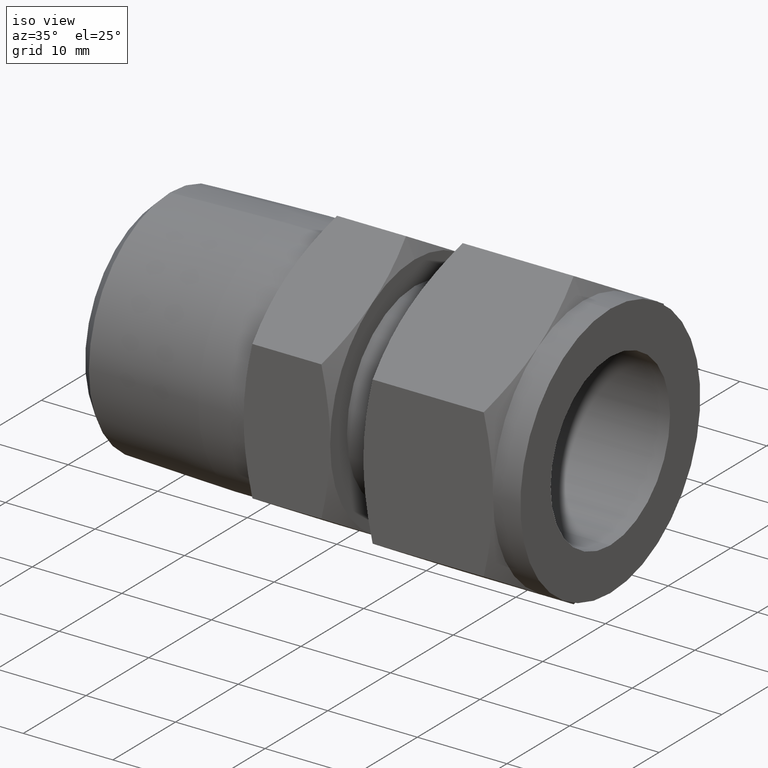
[diagram: clean part render]
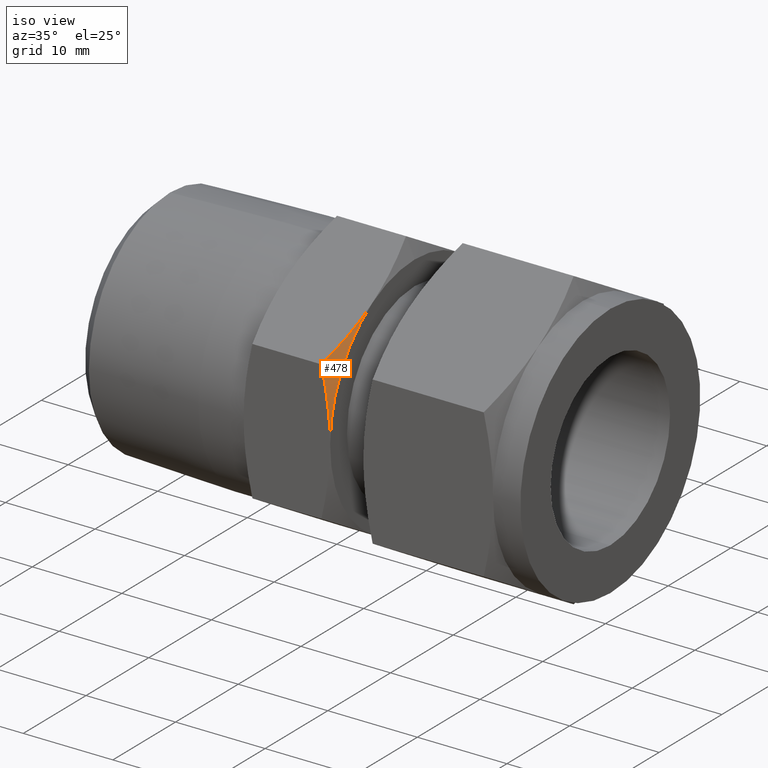
[diagram: same view with one face highlighted and labeled with its STEP entity id]
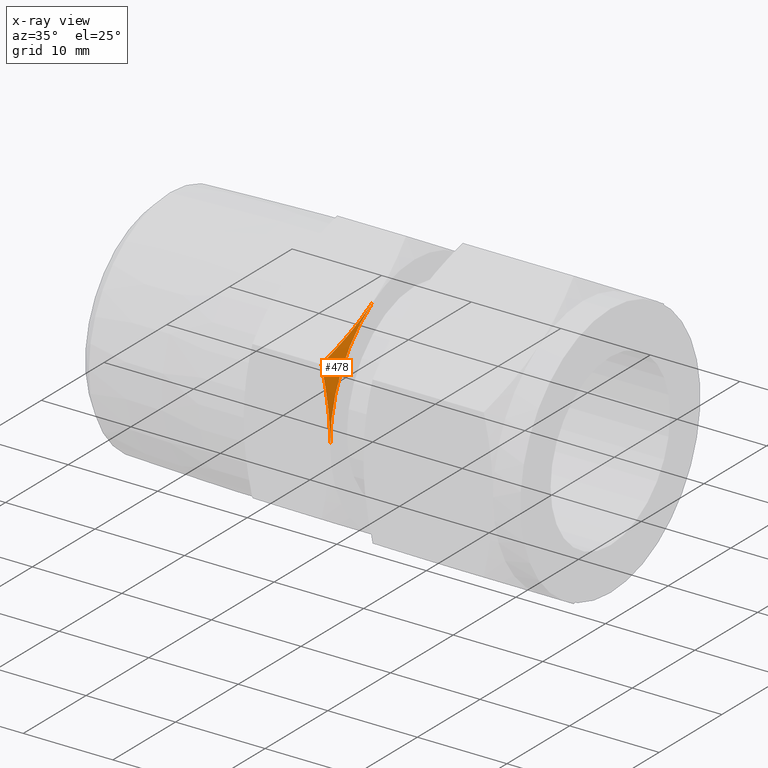
[diagram: x-ray of the same camera — body ghosted, the highlighted face saturated]
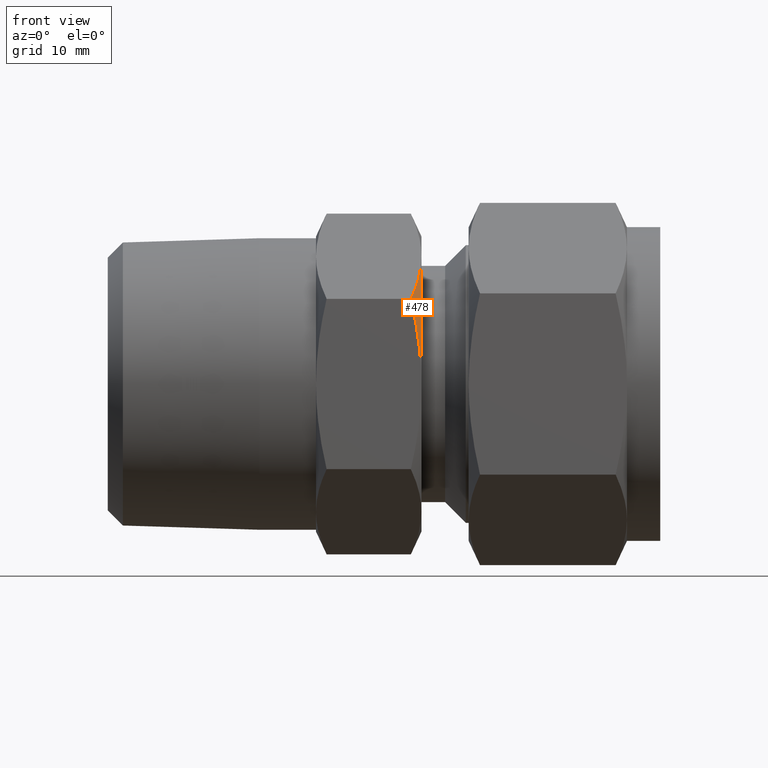
[diagram: same view with one face highlighted and labeled with its STEP entity id]
A machine part, iso view. The second image highlights one B-rep face of the part: STEP entity #478.
The next image is the same camera in x-ray: the body ghosted, the highlighted face saturated — about 0% of this face is hidden behind the body in this view.
A second angle (front view) of the same face is appended — the face is thin or edge-on in the first view.
In plain terms, the highlighted conical surface has half-angle 65 deg.
Its self-contained STEP definition (entity closure, byte-faithful):
#9 = DIRECTION ( 'NONE',  ( -1.000000000000000000, -2.220446049250309876E-16, 0.000000000000000000 ) ) ;
#65 = CARTESIAN_POINT ( 'NONE',  ( 28.70200000000000173, -13.49374999999999680, 3.615639415367511322 ) ) ;
#106 = EDGE_CURVE ( 'NONE', #1724, #1215, #839, .T. ) ;
#115 = CARTESIAN_POINT ( 'NONE',  ( 28.70200000000001594, -9.878110584632574742, 9.878110584632514346 ) ) ;
#130 = CARTESIAN_POINT ( 'NONE',  ( 28.70199999999999818, -6.746875000000000178, 11.68593029231629998 ) ) ;
#158 = CARTESIAN_POINT ( 'NONE',  ( 28.21529362246609907, -1.080705253139999973E-16, 5.909950263546789303E-16 ) ) ;
#237 = EDGE_CURVE ( 'NONE', #691, #1724, #1119, .T. ) ;
#260 = CARTESIAN_POINT ( 'NONE',  ( 28.70199999999999818, -6.746875000000000178, 11.68593029231629998 ) ) ;
#478 = ADVANCED_FACE ( 'NONE', ( #1031 ), #1699, .T. ) ;
#537 = ORIENTED_EDGE ( 'NONE', *, *, #237, .F. ) ;
#561 = EDGE_CURVE ( 'NONE', #1215, #691, #1562, .T. ) ;
#691 = VERTEX_POINT ( 'NONE', #968 ) ;
#749 = AXIS2_PLACEMENT_3D ( 'NONE', #930, #1626, #1805 ) ;
#839 = CIRCLE ( 'NONE', #749, 13.49375000000000036 ) ;
#890 = AXIS2_PLACEMENT_3D ( 'NONE', #158, #9, #1597 ) ;
#930 = CARTESIAN_POINT ( 'NONE',  ( 28.70199999999999818, -6.065908952842039619E-31, 5.909950263546789303E-16 ) ) ;
#936 = CARTESIAN_POINT ( 'NONE',  ( 27.72858724493230298, -13.49375000000000036, 7.790620194877519999 ) ) ;
#943 = ORIENTED_EDGE ( 'NONE', *, *, #106, .F. ) ;
#968 = CARTESIAN_POINT ( 'NONE',  ( 27.72858724493230298, -13.49375000000000036, 7.790620194877519999 ) ) ;
#1031 = FACE_OUTER_BOUND ( 'NONE', #1810, .T. ) ;
#1070 = CARTESIAN_POINT ( 'NONE',  ( 28.70199999999999818, -13.49375000000000036, 4.115953129539549368E-15 ) ) ;
#1119 =( BOUNDED_CURVE ( )  B_SPLINE_CURVE ( 2, ( #1424, #115, #260 ),
 .UNSPECIFIED., .F., .T. ) 
 B_SPLINE_CURVE_WITH_KNOTS ( ( 3, 3 ),
 ( 0.000000000000000000, 0.3096255889101819925 ),
 .UNSPECIFIED. ) 
 CURVE ( )  GEOMETRIC_REPRESENTATION_ITEM ( )  RATIONAL_B_SPLINE_CURVE ( ( 1.000000000000000000, 1.037954849302089810, 1.000000000000000000 ) ) 
 REPRESENTATION_ITEM ( '' )  );
#1215 = VERTEX_POINT ( 'NONE', #1489 ) ;
#1345 = ORIENTED_EDGE ( 'NONE', *, *, #561, .F. ) ;
#1424 = CARTESIAN_POINT ( 'NONE',  ( 27.72858724493230298, -13.49375000000000036, 7.790620194877519999 ) ) ;
#1489 = CARTESIAN_POINT ( 'NONE',  ( 28.70199999999999818, -13.49375000000000036, 4.115953129539549368E-15 ) ) ;
#1562 =( BOUNDED_CURVE ( )  B_SPLINE_CURVE ( 2, ( #1070, #65, #936 ),
 .UNSPECIFIED., .F., .F. ) 
 B_SPLINE_CURVE_WITH_KNOTS ( ( 3, 3 ),
 ( 0.3096255889101819925, 0.6192511778203629857 ),
 .UNSPECIFIED. ) 
 CURVE ( )  GEOMETRIC_REPRESENTATION_ITEM ( )  RATIONAL_B_SPLINE_CURVE ( ( 1.000000000000000000, 1.037954849302159976, 1.000000000000000000 ) ) 
 REPRESENTATION_ITEM ( '' )  );
#1597 = DIRECTION ( 'NONE',  ( 0.000000000000000000, 0.000000000000000000, -1.000000000000000000 ) ) ;
#1626 = DIRECTION ( 'NONE',  ( 1.000000000000000000, 6.797930850579320182E-33, 0.000000000000000000 ) ) ;
#1699 = CONICAL_SURFACE ( 'NONE', #890, 14.53749519487749886, 1.134464013796309789 ) ;
#1724 = VERTEX_POINT ( 'NONE', #130 ) ;
#1805 = DIRECTION ( 'NONE',  ( 0.000000000000000000, 0.000000000000000000, -1.000000000000000000 ) ) ;
#1810 = EDGE_LOOP ( 'NONE', ( #537, #1345, #943 ) ) ;